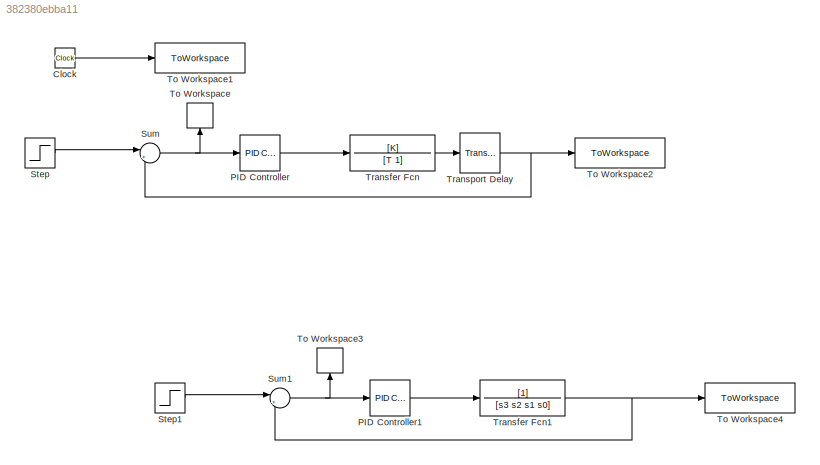
MODEL slx_382380ebba11
KIND model
CONFIG AbsTol = auto
CONFIG EnableMultiTasking = off
CONFIG FixedStep = auto
CONFIG MaxStep = 0.1
CONFIG MinStep = auto
CONFIG RelTol = 1e-3
CONFIG SampleTimeConstraint = Unconstrained
CONFIG SolverName = VariableStepAuto
CONFIG StartTime = 0.0
CONFIG StopTime = t_simulation
BLOCK [Clock] Clock
BLOCK [Reference] PID Controller  REF=slpidlib/PID Controller
  LibrarySourceBlock = simulink/Continuous/PID Controller
  SourceBlock = slpidlib/PID Controller
  SourceType = PID 1dof
BLOCK [Reference] PID Controller1  REF=slpidlib/PID Controller
  LibrarySourceBlock = simulink/Continuous/PID Controller
  SourceBlock = slpidlib/PID Controller
  SourceType = PID 1dof
BLOCK [Step] Step
  After = dqg
  Before = q0
  SampleTime = 0
  Time = t0
BLOCK [Step] Step1
  After = dqg
  Before = q0
  SampleTime = 0
  Time = t0
BLOCK [Sum] Sum
  Inputs = |+-
BLOCK [Sum] Sum1
  Inputs = |+-
BLOCK [ToWorkspace] To Workspace
  FixptAsFi = on
  MaxDataPoints = inf
  NameLocation = right
  SampleTime = -1
  VariableName = e
BLOCK [ToWorkspace] To Workspace1
  FixptAsFi = on
  MaxDataPoints = inf
  SampleTime = -1
  VariableName = t
BLOCK [ToWorkspace] To Workspace2
  FixptAsFi = on
  MaxDataPoints = inf
  SampleTime = -1
  VariableName = y
BLOCK [ToWorkspace] To Workspace3
  FixptAsFi = on
  MaxDataPoints = inf
  NameLocation = right
  SampleTime = -1
  VariableName = e1
BLOCK [ToWorkspace] To Workspace4
  FixptAsFi = on
  MaxDataPoints = inf
  SampleTime = -1
  VariableName = y1
BLOCK [TransferFcn] Transfer Fcn
  Denominator = [T 1]
  Numerator = [K]
BLOCK [TransferFcn] Transfer Fcn1
  Denominator = [s3 s2 s1 s0]
BLOCK [TransportDelay] Transport Delay
  DelayTime = T0
LINE Clock:1 -> To Workspace1:1
LINE PID Controller1:1 -> Transfer Fcn1:1
LINE PID Controller:1 -> Transfer Fcn:1
LINE Step1:1 -> Sum1:1
LINE Step:1 -> Sum:1
NET Sum1:1 -> PID Controller1:1, To Workspace3:1
NET Sum:1 -> PID Controller:1, To Workspace:1
NET Transfer Fcn1:1 -> Sum1:2, To Workspace4:1
LINE Transfer Fcn:1 -> Transport Delay:1
NET Transport Delay:1 -> Sum:2, To Workspace2:1
note: NET lines group one-source signal fan-out (src -> all destinations, sorted); 1:1 wires keep LINE
